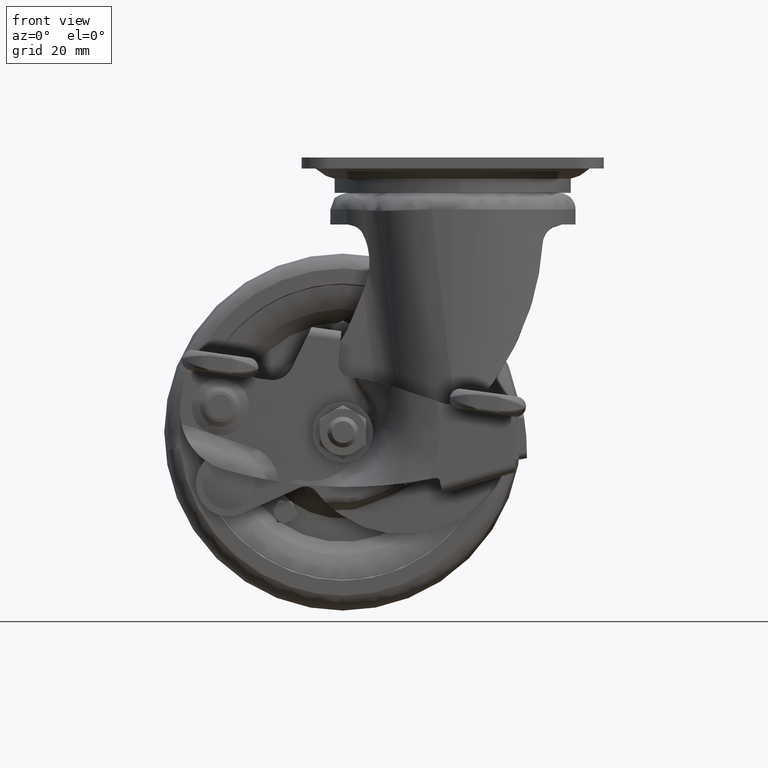
[diagram: clean part render]
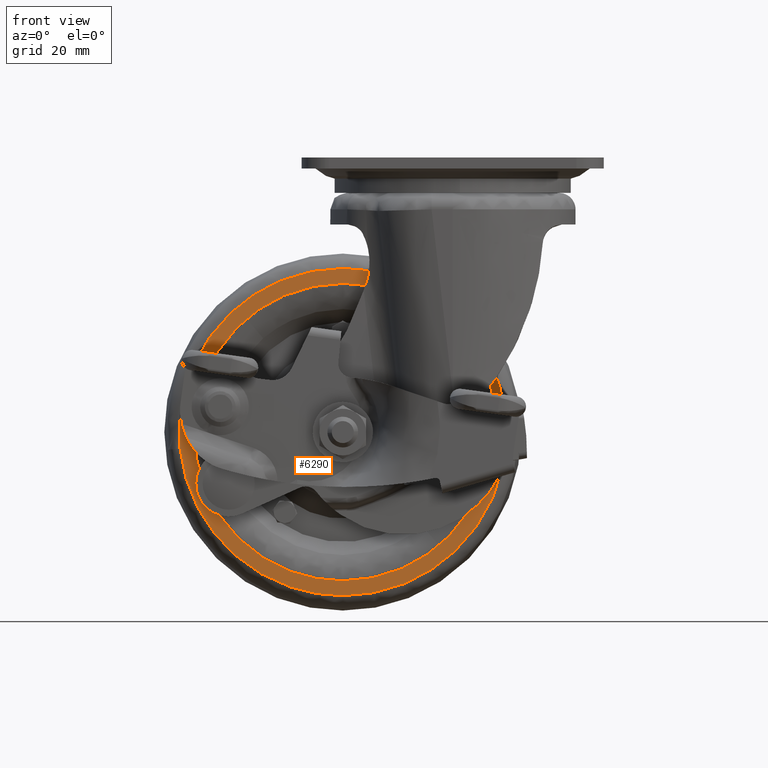
[diagram: same view with one face highlighted and labeled with its STEP entity id]
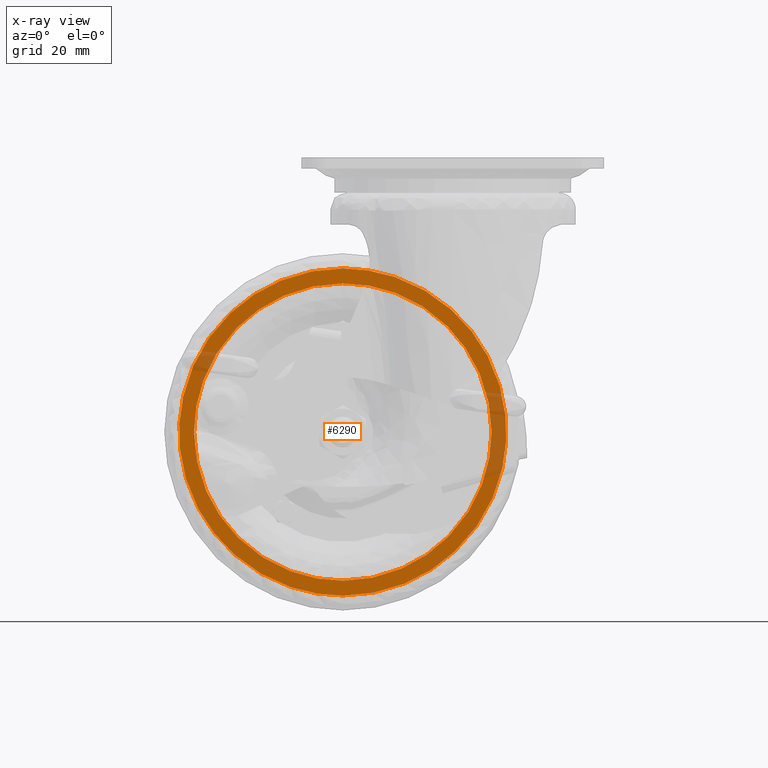
[diagram: x-ray of the same camera — body ghosted, the highlighted face saturated]
A machine part, front view. The second image highlights one B-rep face of the part: STEP entity #6290.
The next image is the same camera in x-ray: the body ghosted, the highlighted face saturated — about 11% of this face is hidden behind the body in this view.
In plain terms, the highlighted face is a freeform B-spline surface patch.
Its self-contained STEP definition (entity closure, byte-faithful):
#5928=CARTESIAN_POINT('',(-99.260680487490461,-21.0,-105.977684746097590));
#5929=VERTEX_POINT('',#5928);
#5943=CARTESIAN_POINT('',(-40.0,-21.0,-40.438594999999907));
#5944=VERTEX_POINT('',#5943);
#5945=CARTESIAN_POINT('',(-40.0,-21.0,-40.438594999999907));
#5946=CARTESIAN_POINT('',(-99.561405004494105,-21.000000000000004,-40.438595000453233));
#5947=CARTESIAN_POINT('',(-99.561405009464266,-21.0,-100.000000000954700));
#5948=CARTESIAN_POINT('',(-99.561405009714306,-21.000000000000004,-102.996406776992880));
#5949=CARTESIAN_POINT('',(-99.260680487490461,-21.0,-105.977684746097610));
#5957=(BOUNDED_CURVE()B_SPLINE_CURVE(2,(#5945,#5946,#5947,#5948,#5949),.UNSPECIFIED.,.F.,.U.)B_SPLINE_CURVE_WITH_KNOTS((3,2,3),(0.0,0.250000000000000,0.267423441083131),.UNSPECIFIED.)CURVE()GEOMETRIC_REPRESENTATION_ITEM()RATIONAL_B_SPLINE_CURVE((1.0,0.707106781186548,1.0,0.979587169033421,0.962019632128330))REPRESENTATION_ITEM(''));
#5958=EDGE_CURVE('',#5944,#5929,#5957,.T.);
#5960=CARTESIAN_POINT('',(19.260680487490450,-21.0,-94.022315253902377));
#5961=VERTEX_POINT('',#5960);
#5962=CARTESIAN_POINT('',(19.260680487490443,-21.0,-94.022315253902377));
#5963=CARTESIAN_POINT('',(13.855636453798391,-21.000000000000011,-40.438594999498513));
#5964=CARTESIAN_POINT('',(-40.0,-21.0,-40.438594999999907));
#5972=(BOUNDED_CURVE()B_SPLINE_CURVE(2,(#5962,#5963,#5964),.UNSPECIFIED.,.F.,.U.)B_SPLINE_CURVE_WITH_KNOTS((3,3),(0.767423441083131,1.0),.UNSPECIFIED.)CURVE()GEOMETRIC_REPRESENTATION_ITEM()RATIONAL_B_SPLINE_CURVE((0.962019632128330,0.727519612153127,1.0))REPRESENTATION_ITEM(''));
#5973=EDGE_CURVE('',#5961,#5944,#5972,.T.);
#6022=CARTESIAN_POINT('',(-40.0,-21.0,-159.561405000000090));
#6023=VERTEX_POINT('',#6022);
#6024=CARTESIAN_POINT('',(-40.0,-21.0,-159.561405000000090));
#6025=CARTESIAN_POINT('',(19.561405004494105,-21.000000000000004,-159.561404999546740));
#6026=CARTESIAN_POINT('',(19.561405009464249,-21.0,-99.999999999045329));
#6027=CARTESIAN_POINT('',(19.561405009714296,-21.000000000000004,-97.003593223007158));
#6028=CARTESIAN_POINT('',(19.260680487490443,-21.0,-94.022315253902377));
#6036=(BOUNDED_CURVE()B_SPLINE_CURVE(2,(#6024,#6025,#6026,#6027,#6028),.UNSPECIFIED.,.F.,.U.)B_SPLINE_CURVE_WITH_KNOTS((3,2,3),(0.500000000000000,0.750000000000000,0.767423441083131),.UNSPECIFIED.)CURVE()GEOMETRIC_REPRESENTATION_ITEM()RATIONAL_B_SPLINE_CURVE((1.0,0.707106781186548,1.0,0.979587169033421,0.962019632128330))REPRESENTATION_ITEM(''));
#6037=EDGE_CURVE('',#6023,#5961,#6036,.T.);
#6039=CARTESIAN_POINT('',(-99.260680487490461,-21.0,-105.977684746097610));
#6040=CARTESIAN_POINT('',(-93.855636453798397,-21.000000000000011,-159.561405000501450));
#6041=CARTESIAN_POINT('',(-40.0,-21.0,-159.561405000000090));
#6049=(BOUNDED_CURVE()B_SPLINE_CURVE(2,(#6039,#6040,#6041),.UNSPECIFIED.,.F.,.U.)B_SPLINE_CURVE_WITH_KNOTS((3,3),(0.267423441083131,0.500000000000000),.UNSPECIFIED.)CURVE()GEOMETRIC_REPRESENTATION_ITEM()RATIONAL_B_SPLINE_CURVE((0.962019632128330,0.727519612153127,1.0))REPRESENTATION_ITEM(''));
#6050=EDGE_CURVE('',#5929,#6023,#6049,.T.);
#6217=CARTESIAN_POINT('',(25.507705531639399,-21.0,-165.511589128617000));
#6218=CARTESIAN_POINT('',(25.507705531639399,-21.0,-34.488407676260287));
#6219=CARTESIAN_POINT('',(-105.507703401864110,-21.0,-165.511589128617000));
#6220=CARTESIAN_POINT('',(-105.507703401864110,-21.0,-34.488407676260287));
#6221=B_SPLINE_SURFACE_WITH_KNOTS('',1,1,((#6217,#6219),(#6218,#6220)),.UNSPECIFIED.,.F.,.F.,.U.,(2,2),(2,2),(0.0,131.023181452356710),(0.0,131.015408933503490),.UNSPECIFIED.);
#6222=ORIENTED_EDGE('',*,*,#5958,.T.);
#6223=ORIENTED_EDGE('',*,*,#6050,.T.);
#6224=ORIENTED_EDGE('',*,*,#6037,.T.);
#6225=ORIENTED_EDGE('',*,*,#5973,.T.);
#6226=EDGE_LOOP('',(#6222,#6223,#6224,#6225));
#6227=FACE_OUTER_BOUND('',#6226,.T.);
#6228=CARTESIAN_POINT('',(-40.0,-21.0,-154.150000000000010));
#6229=VERTEX_POINT('',#6228);
#6230=CARTESIAN_POINT('',(14.149999996601100,-21.0,-100.0));
#6231=VERTEX_POINT('',#6230);
#6232=CARTESIAN_POINT('',(-40.0,-21.0,-154.150000000000010));
#6233=CARTESIAN_POINT('',(14.149999998300544,-21.000000000000004,-154.149999999999980));
#6234=CARTESIAN_POINT('',(14.149999996601100,-21.0,-100.0));
#6242=(BOUNDED_CURVE()B_SPLINE_CURVE(2,(#6232,#6233,#6234),.UNSPECIFIED.,.F.,.U.)B_SPLINE_CURVE_WITH_KNOTS((3,3),(0.500000000000000,0.750000000000000),.UNSPECIFIED.)CURVE()GEOMETRIC_REPRESENTATION_ITEM()RATIONAL_B_SPLINE_CURVE((1.0,0.707106781186548,1.0))REPRESENTATION_ITEM(''));
#6243=EDGE_CURVE('',#6229,#6231,#6242,.T.);
#6244=ORIENTED_EDGE('',*,*,#6243,.F.);
#6245=CARTESIAN_POINT('',(-94.149999996601110,-21.0,-99.999999999999986));
#6246=VERTEX_POINT('',#6245);
#6247=CARTESIAN_POINT('',(-94.149999996601110,-21.000000000000004,-99.999999999999986));
#6248=CARTESIAN_POINT('',(-94.149999998300558,-20.999999999999989,-154.150000000000010));
#6249=CARTESIAN_POINT('',(-40.0,-21.0,-154.150000000000010));
#6257=(BOUNDED_CURVE()B_SPLINE_CURVE(2,(#6247,#6248,#6249),.UNSPECIFIED.,.F.,.U.)B_SPLINE_CURVE_WITH_KNOTS((3,3),(0.250000000000000,0.500000000000000),.UNSPECIFIED.)CURVE()GEOMETRIC_REPRESENTATION_ITEM()RATIONAL_B_SPLINE_CURVE((1.000000000000000,0.707106781186547,1.0))REPRESENTATION_ITEM(''));
#6258=EDGE_CURVE('',#6246,#6229,#6257,.T.);
#6259=ORIENTED_EDGE('',*,*,#6258,.F.);
#6260=CARTESIAN_POINT('',(-40.0,-21.0,-45.849999999999987));
#6261=VERTEX_POINT('',#6260);
#6262=CARTESIAN_POINT('',(-40.0,-21.0,-45.849999999999987));
#6263=CARTESIAN_POINT('',(-94.149999998300530,-21.0,-45.850000000000023));
#6264=CARTESIAN_POINT('',(-94.149999996601110,-21.000000000000004,-99.999999999999986));
#6272=(BOUNDED_CURVE()B_SPLINE_CURVE(2,(#6262,#6263,#6264),.UNSPECIFIED.,.F.,.U.)B_SPLINE_CURVE_WITH_KNOTS((3,3),(0.0,0.250000000000000),.UNSPECIFIED.)CURVE()GEOMETRIC_REPRESENTATION_ITEM()RATIONAL_B_SPLINE_CURVE((1.0,0.707106781186548,1.000000000000000))REPRESENTATION_ITEM(''));
#6273=EDGE_CURVE('',#6261,#6246,#6272,.T.);
#6274=ORIENTED_EDGE('',*,*,#6273,.F.);
#6275=CARTESIAN_POINT('',(14.149999996601100,-21.0,-100.0));
#6276=CARTESIAN_POINT('',(14.149999998300544,-21.000000000000004,-45.849999999999987));
#6277=CARTESIAN_POINT('',(-40.0,-21.0,-45.849999999999987));
#6285=(BOUNDED_CURVE()B_SPLINE_CURVE(2,(#6275,#6276,#6277),.UNSPECIFIED.,.F.,.U.)B_SPLINE_CURVE_WITH_KNOTS((3,3),(0.750000000000000,1.0),.UNSPECIFIED.)CURVE()GEOMETRIC_REPRESENTATION_ITEM()RATIONAL_B_SPLINE_CURVE((1.0,0.707106781186548,1.0))REPRESENTATION_ITEM(''));
#6286=EDGE_CURVE('',#6231,#6261,#6285,.T.);
#6287=ORIENTED_EDGE('',*,*,#6286,.F.);
#6288=EDGE_LOOP('',(#6244,#6259,#6274,#6287));
#6289=FACE_BOUND('',#6288,.T.);
#6290=ADVANCED_FACE('',(#6227,#6289),#6221,.T.);